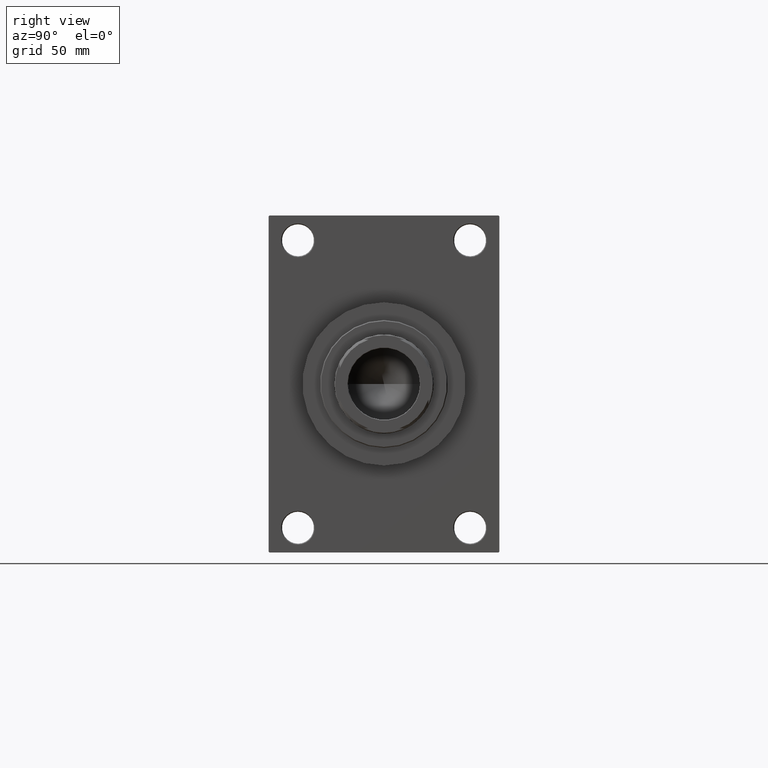
[diagram: clean part render]
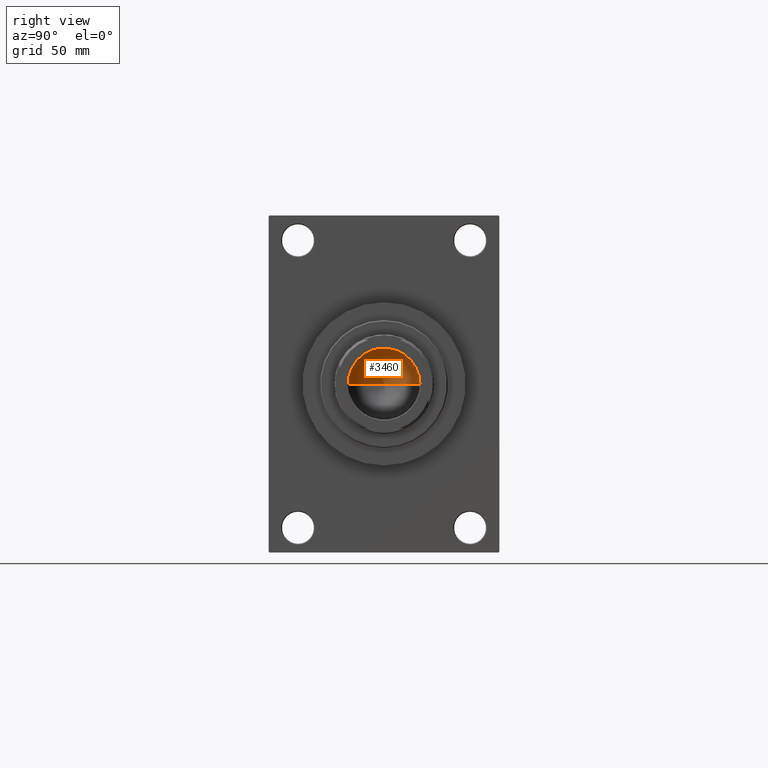
[diagram: same view with one face highlighted and labeled with its STEP entity id]
A machine part, right view. The second image highlights one B-rep face of the part: STEP entity #3460.
In plain terms, the highlighted conical surface has half-angle 59 deg.
Its self-contained STEP definition (entity closure, byte-faithful):
#918 = LINE ( 'NONE', #15169, #40646 ) ;
#1870 = LINE ( 'NONE', #16602, #47774 ) ;
#2977 = VERTEX_POINT ( 'NONE', #27624 ) ;
#3460 = ADVANCED_FACE ( 'NONE', ( #18776 ), #9967, .F. ) ;
#5252 = CARTESIAN_POINT ( 'NONE',  ( 20.24999999999998934, 0.000000000000000000, 216.0000000000000284 ) ) ;
#5269 = EDGE_CURVE ( 'NONE', #11317, #2977, #1870, .T. ) ;
#6628 = DIRECTION ( 'NONE',  ( -0.000000000000000000, -0.000000000000000000, 1.000000000000000000 ) ) ;
#7635 = AXIS2_PLACEMENT_3D ( 'NONE', #45549, #19500, #26242 ) ;
#9967 = CONICAL_SURFACE ( 'NONE', #7635, 20.24999999999998934, 1.029744258676652313 ) ;
#11317 = VERTEX_POINT ( 'NONE', #12401 ) ;
#12401 = CARTESIAN_POINT ( 'NONE',  ( -1.584115414415908206E-14, 0.000000000000000000, 203.8325724646918786 ) ) ;
#12980 = DIRECTION ( 'NONE',  ( -0.8571673007021112234, 1.049727191138617340E-16, 0.5150380749100560429 ) ) ;
#13895 = CARTESIAN_POINT ( 'NONE',  ( 0.000000000000000000, 0.000000000000000000, 216.0000000000000284 ) ) ;
#15169 = CARTESIAN_POINT ( 'NONE',  ( 20.24999999999998934, 0.000000000000000000, 216.0000000000000284 ) ) ;
#16602 = CARTESIAN_POINT ( 'NONE',  ( -20.24999999999998934, 2.479909768273389117E-15, 216.0000000000000284 ) ) ;
#18441 = EDGE_LOOP ( 'NONE', ( #42307, #20912, #38128 ) ) ;
#18776 = FACE_OUTER_BOUND ( 'NONE', #18441, .T. ) ;
#19500 = DIRECTION ( 'NONE',  ( -0.000000000000000000, -0.000000000000000000, 1.000000000000000000 ) ) ;
#19501 = CIRCLE ( 'NONE', #34127, 20.24999999999998934 ) ;
#20912 = ORIENTED_EDGE ( 'NONE', *, *, #5269, .T. ) ;
#24739 = DIRECTION ( 'NONE',  ( 1.000000000000000000, 0.000000000000000000, 0.000000000000000000 ) ) ;
#26242 = DIRECTION ( 'NONE',  ( 1.000000000000000000, 0.000000000000000000, 0.000000000000000000 ) ) ;
#27547 = EDGE_CURVE ( 'NONE', #11317, #27590, #918, .T. ) ;
#27590 = VERTEX_POINT ( 'NONE', #5252 ) ;
#27624 = CARTESIAN_POINT ( 'NONE',  ( -20.24999999999998934, 2.479909768273389117E-15, 216.0000000000000284 ) ) ;
#29880 = DIRECTION ( 'NONE',  ( 0.8571673007021112234, 0.000000000000000000, 0.5150380749100560429 ) ) ;
#34127 = AXIS2_PLACEMENT_3D ( 'NONE', #13895, #6628, #24739 ) ;
#38128 = ORIENTED_EDGE ( 'NONE', *, *, #45916, .T. ) ;
#40646 = VECTOR ( 'NONE', #29880, 1000.000000000000000 ) ;
#42307 = ORIENTED_EDGE ( 'NONE', *, *, #27547, .F. ) ;
#45549 = CARTESIAN_POINT ( 'NONE',  ( 0.000000000000000000, 0.000000000000000000, 216.0000000000000284 ) ) ;
#45916 = EDGE_CURVE ( 'NONE', #2977, #27590, #19501, .T. ) ;
#47774 = VECTOR ( 'NONE', #12980, 1000.000000000000000 ) ;